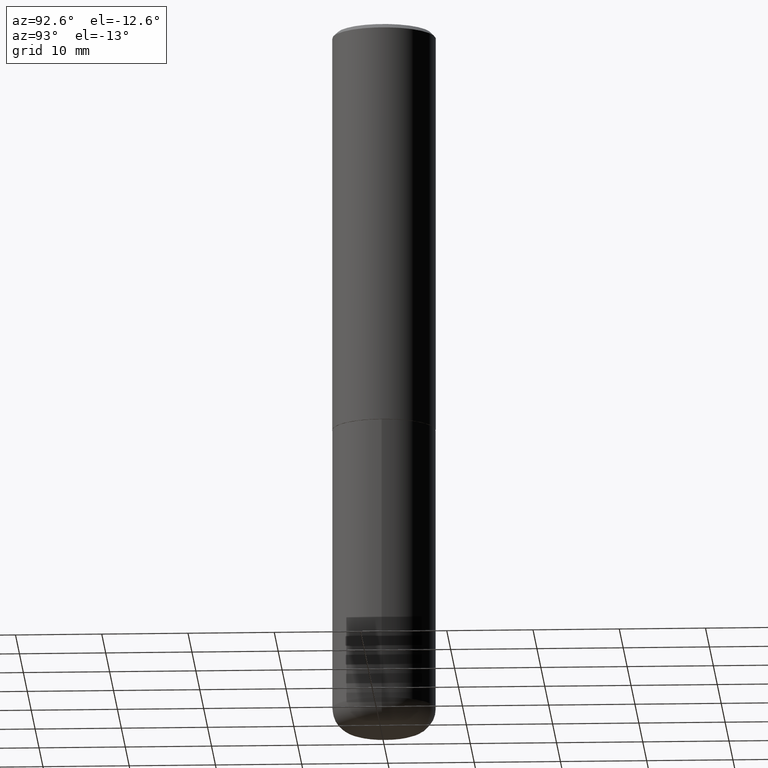
[diagram: clean part render]
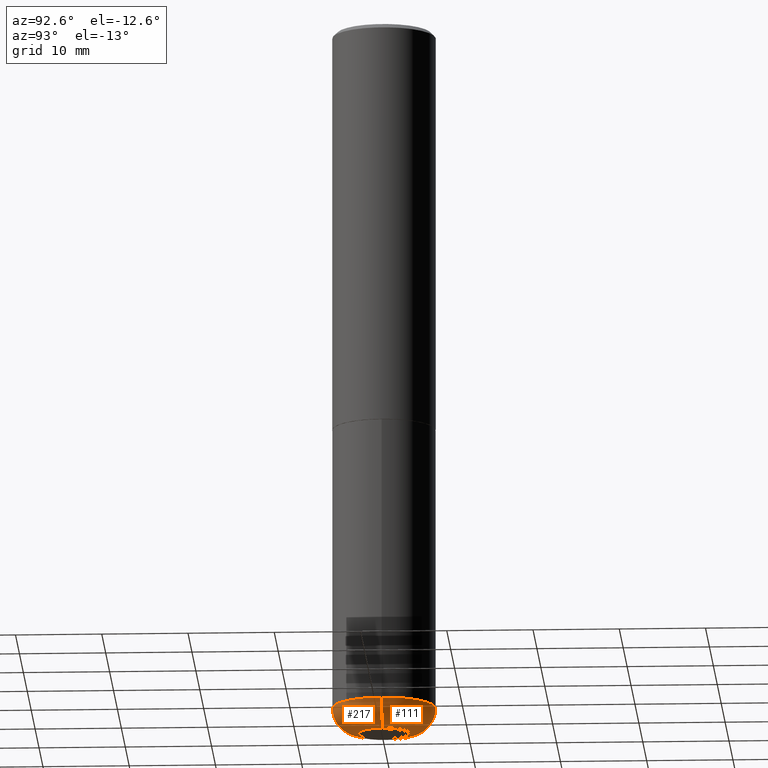
[diagram: same view with one multi-face feature highlighted, each face labeled with its STEP entity id]
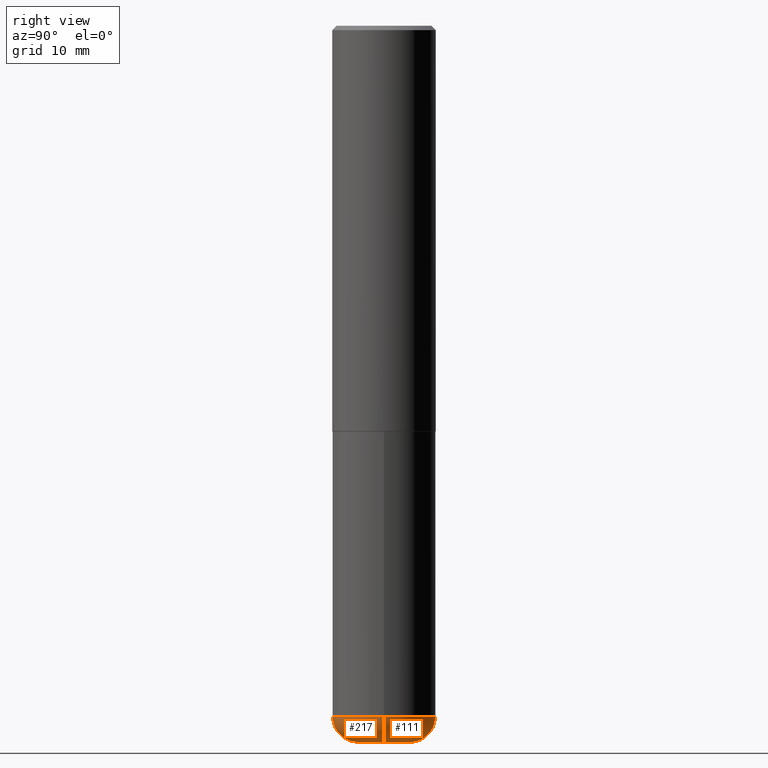
[diagram: same view with one multi-face feature highlighted, each face labeled with its STEP entity id]
A machine part, auxiliary view. The highlighted faces form ONE feature: a constant-radius fillet chain: 2 tangent blend faces with common blend radius 2.9997 mm. The faces share edges in the B-rep.
A second angle (right view) of the same feature is appended — it is thin or edge-on in the first view.
Their STEP definitions:
[1] entity #111 (Torus):
#6 = CIRCLE ( 'NONE', #201, 0.1180999999999997607 ) ;
#13 = AXIS2_PLACEMENT_3D ( 'NONE', #198, #318, #387 ) ;
#17 = CARTESIAN_POINT ( 'NONE',  ( 0.1181000000000000105, -1.223380146317249313E-14, -3.267699999999999605 ) ) ;
#24 = CARTESIAN_POINT ( 'NONE',  ( -0.1181000000000000383, -9.944215141480041685E-15, -3.267699999999999605 ) ) ;
#30 = DIRECTION ( 'NONE',  ( -2.445468806185136597E-29, 3.491481338843145583E-15, 1.000000000000000000 ) ) ;
#65 = CARTESIAN_POINT ( 'NONE',  ( 0.2361999999999998823, -1.264614540928986883E-14, -3.149600000000000399 ) ) ;
#68 = DIRECTION ( 'NONE',  ( -2.445468806185136597E-29, 3.491481338843145583E-15, 1.000000000000000000 ) ) ;
#72 = DIRECTION ( 'NONE',  ( 1.000000000000000000, -6.982962677686270655E-15, 0.000000000000000000 ) ) ;
#83 = AXIS2_PLACEMENT_3D ( 'NONE', #126, #68, #355 ) ;
#90 = AXIS2_PLACEMENT_3D ( 'NONE', #249, #30, #120 ) ;
#111 = ADVANCED_FACE ( 'NONE', ( #338 ), #399, .T. ) ;
#120 = DIRECTION ( 'NONE',  ( 1.000000000000000000, -6.982962677686263555E-15, 4.883557194083111780E-29 ) ) ;
#126 = CARTESIAN_POINT ( 'NONE',  ( 7.702248551960706711E-29, -1.099676962482037231E-14, -3.149600000000000399 ) ) ;
#137 = DIRECTION ( 'NONE',  ( 1.000000000000000000, -6.982962677686272233E-15, 0.000000000000000000 ) ) ;
#145 = VERTEX_POINT ( 'NONE', #24 ) ;
#153 = VERTEX_POINT ( 'NONE', #398 ) ;
#162 = VERTEX_POINT ( 'NONE', #17 ) ;
#196 = CIRCLE ( 'NONE', #13, 0.1180999999999997607 ) ;
#197 = EDGE_LOOP ( 'NONE', ( #210, #324, #255, #211 ) ) ;
#198 = CARTESIAN_POINT ( 'NONE',  ( -0.1180999999999999966, -1.015761865388769332E-14, -3.149600000000000399 ) ) ;
#200 = CARTESIAN_POINT ( 'NONE',  ( 0.1180999999999999966, -1.182145751705512057E-14, -3.149600000000000399 ) ) ;
#201 = AXIS2_PLACEMENT_3D ( 'NONE', #200, #264, #72 ) ;
#210 = ORIENTED_EDGE ( 'NONE', *, *, #382, .T. ) ;
#211 = ORIENTED_EDGE ( 'NONE', *, *, #395, .F. ) ;
#225 = DIRECTION ( 'NONE',  ( -2.445468806185136597E-29, 3.491481338843145583E-15, 1.000000000000000000 ) ) ;
#249 = CARTESIAN_POINT ( 'NONE',  ( 7.702248551960706711E-29, -1.099676962482037231E-14, -3.149600000000000399 ) ) ;
#254 = AXIS2_PLACEMENT_3D ( 'NONE', #258, #225, #137 ) ;
#255 = ORIENTED_EDGE ( 'NONE', *, *, #412, .F. ) ;
#258 = CARTESIAN_POINT ( 'NONE',  ( 7.991058417971169471E-29, -1.140911357093774486E-14, -3.267699999999999605 ) ) ;
#264 = DIRECTION ( 'NONE',  ( -6.982962677686266711E-15, -1.000000000000000000, 3.491481338843145583E-15 ) ) ;
#278 = VERTEX_POINT ( 'NONE', #65 ) ;
#301 = CIRCLE ( 'NONE', #254, 0.1181000000000000105 ) ;
#318 = DIRECTION ( 'NONE',  ( 7.105427357601001859E-15, 1.000000000000000000, -3.491481338843145583E-15 ) ) ;
#324 = ORIENTED_EDGE ( 'NONE', *, *, #341, .T. ) ;
#338 = FACE_OUTER_BOUND ( 'NONE', #197, .T. ) ;
#341 = EDGE_CURVE ( 'NONE', #145, #153, #196, .T. ) ;
#353 = CIRCLE ( 'NONE', #83, 0.2362000000000000210 ) ;
#355 = DIRECTION ( 'NONE',  ( 1.000000000000000000, -6.982962677686264344E-15, 0.000000000000000000 ) ) ;
#382 = EDGE_CURVE ( 'NONE', #162, #145, #301, .T. ) ;
#387 = DIRECTION ( 'NONE',  ( -1.000000000000000000, 7.105427357601001859E-15, 0.000000000000000000 ) ) ;
#395 = EDGE_CURVE ( 'NONE', #162, #278, #6, .T. ) ;
#398 = CARTESIAN_POINT ( 'NONE',  ( -0.2361999999999998823, -9.318467682955017493E-15, -3.149600000000000399 ) ) ;
#399 = TOROIDAL_SURFACE ( 'NONE', #90, 0.1180999999999999966, 0.1180999999999997607 ) ;
#412 = EDGE_CURVE ( 'NONE', #278, #153, #353, .T. ) ;
[2] entity #217 (Torus):
#4 = DIRECTION ( 'NONE',  ( -2.445468806185136597E-29, 3.491481338843145583E-15, 1.000000000000000000 ) ) ;
#6 = CIRCLE ( 'NONE', #201, 0.1180999999999997607 ) ;
#13 = AXIS2_PLACEMENT_3D ( 'NONE', #198, #318, #387 ) ;
#17 = CARTESIAN_POINT ( 'NONE',  ( 0.1181000000000000105, -1.223380146317249313E-14, -3.267699999999999605 ) ) ;
#24 = CARTESIAN_POINT ( 'NONE',  ( -0.1181000000000000383, -9.944215141480041685E-15, -3.267699999999999605 ) ) ;
#31 = DIRECTION ( 'NONE',  ( 1.000000000000000000, -6.982962677686263555E-15, 4.883557194083111780E-29 ) ) ;
#35 = ORIENTED_EDGE ( 'NONE', *, *, #341, .F. ) ;
#65 = CARTESIAN_POINT ( 'NONE',  ( 0.2361999999999998823, -1.264614540928986883E-14, -3.149600000000000399 ) ) ;
#72 = DIRECTION ( 'NONE',  ( 1.000000000000000000, -6.982962677686270655E-15, 0.000000000000000000 ) ) ;
#74 = AXIS2_PLACEMENT_3D ( 'NONE', #416, #185, #31 ) ;
#125 = CIRCLE ( 'NONE', #330, 0.1181000000000000105 ) ;
#128 = CARTESIAN_POINT ( 'NONE',  ( 7.991058417971169471E-29, -1.140911357093774486E-14, -3.267699999999999605 ) ) ;
#145 = VERTEX_POINT ( 'NONE', #24 ) ;
#153 = VERTEX_POINT ( 'NONE', #398 ) ;
#162 = VERTEX_POINT ( 'NONE', #17 ) ;
#164 = FACE_OUTER_BOUND ( 'NONE', #378, .T. ) ;
#166 = CIRCLE ( 'NONE', #322, 0.2362000000000000210 ) ;
#185 = DIRECTION ( 'NONE',  ( -2.445468806185136597E-29, 3.491481338843145583E-15, 1.000000000000000000 ) ) ;
#193 = ORIENTED_EDGE ( 'NONE', *, *, #337, .F. ) ;
#196 = CIRCLE ( 'NONE', #13, 0.1180999999999997607 ) ;
#198 = CARTESIAN_POINT ( 'NONE',  ( -0.1180999999999999966, -1.015761865388769332E-14, -3.149600000000000399 ) ) ;
#200 = CARTESIAN_POINT ( 'NONE',  ( 0.1180999999999999966, -1.182145751705512057E-14, -3.149600000000000399 ) ) ;
#201 = AXIS2_PLACEMENT_3D ( 'NONE', #200, #264, #72 ) ;
#217 = ADVANCED_FACE ( 'NONE', ( #164 ), #390, .T. ) ;
#220 = ORIENTED_EDGE ( 'NONE', *, *, #395, .T. ) ;
#262 = DIRECTION ( 'NONE',  ( -2.445468806185136597E-29, 3.491481338843145583E-15, 1.000000000000000000 ) ) ;
#264 = DIRECTION ( 'NONE',  ( -6.982962677686266711E-15, -1.000000000000000000, 3.491481338843145583E-15 ) ) ;
#278 = VERTEX_POINT ( 'NONE', #65 ) ;
#285 = DIRECTION ( 'NONE',  ( 1.000000000000000000, -6.982962677686264344E-15, 0.000000000000000000 ) ) ;
#295 = ORIENTED_EDGE ( 'NONE', *, *, #376, .T. ) ;
#318 = DIRECTION ( 'NONE',  ( 7.105427357601001859E-15, 1.000000000000000000, -3.491481338843145583E-15 ) ) ;
#322 = AXIS2_PLACEMENT_3D ( 'NONE', #359, #262, #285 ) ;
#330 = AXIS2_PLACEMENT_3D ( 'NONE', #128, #4, #349 ) ;
#337 = EDGE_CURVE ( 'NONE', #153, #278, #166, .T. ) ;
#341 = EDGE_CURVE ( 'NONE', #145, #153, #196, .T. ) ;
#349 = DIRECTION ( 'NONE',  ( 1.000000000000000000, -6.982962677686272233E-15, 0.000000000000000000 ) ) ;
#359 = CARTESIAN_POINT ( 'NONE',  ( 7.702248551960706711E-29, -1.099676962482037231E-14, -3.149600000000000399 ) ) ;
#376 = EDGE_CURVE ( 'NONE', #145, #162, #125, .T. ) ;
#378 = EDGE_LOOP ( 'NONE', ( #35, #295, #220, #193 ) ) ;
#387 = DIRECTION ( 'NONE',  ( -1.000000000000000000, 7.105427357601001859E-15, 0.000000000000000000 ) ) ;
#390 = TOROIDAL_SURFACE ( 'NONE', #74, 0.1180999999999999966, 0.1180999999999997607 ) ;
#395 = EDGE_CURVE ( 'NONE', #162, #278, #6, .T. ) ;
#398 = CARTESIAN_POINT ( 'NONE',  ( -0.2361999999999998823, -9.318467682955017493E-15, -3.149600000000000399 ) ) ;
#416 = CARTESIAN_POINT ( 'NONE',  ( 7.702248551960706711E-29, -1.099676962482037231E-14, -3.149600000000000399 ) ) ;